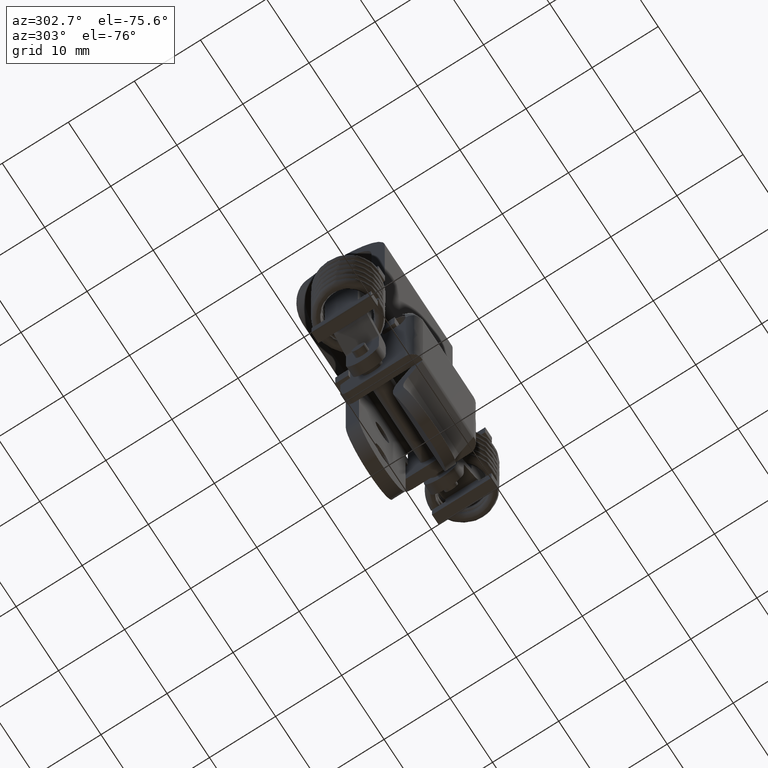
[diagram: clean part render]
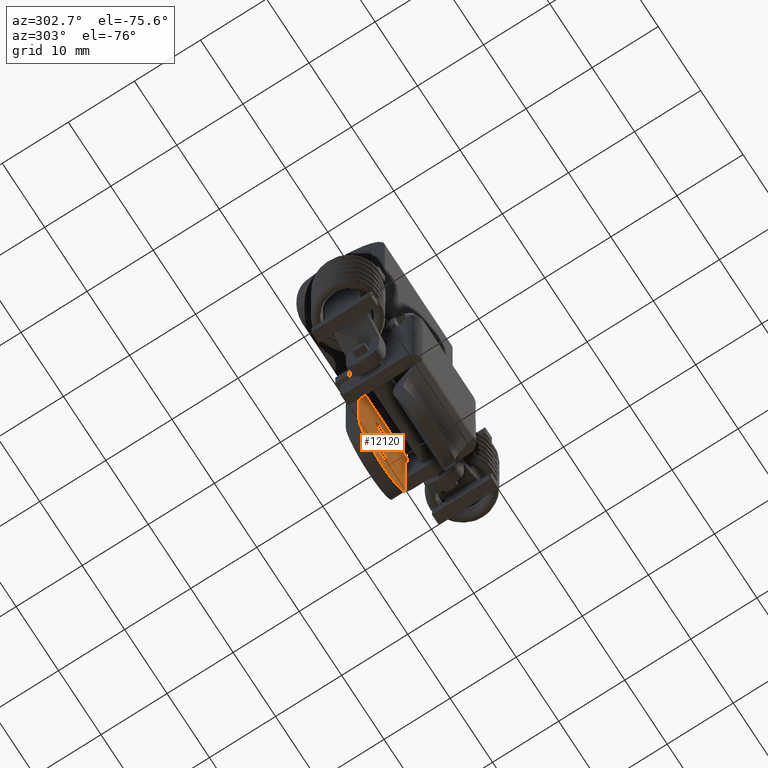
[diagram: same view with one face highlighted and labeled with its STEP entity id]
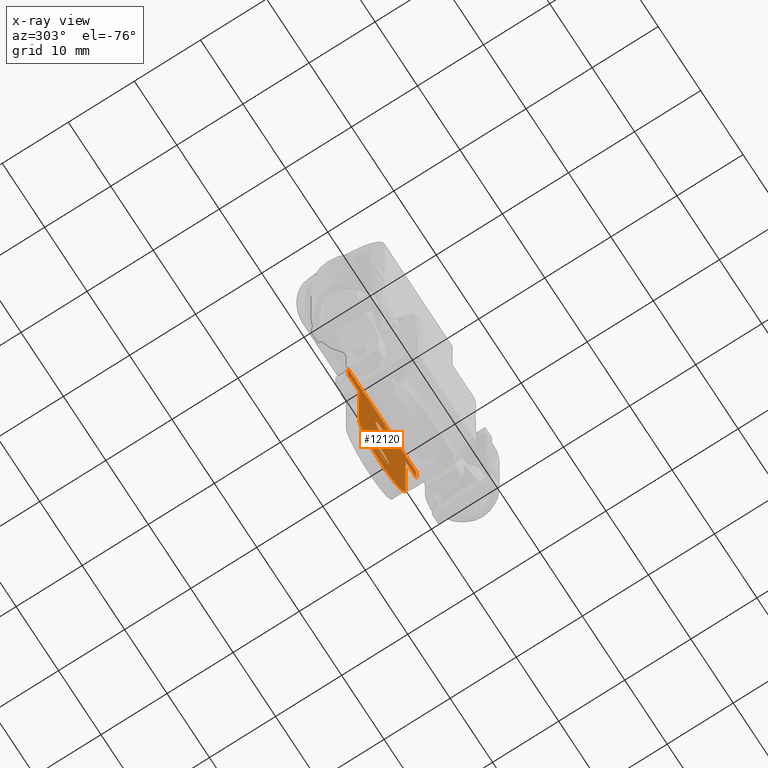
[diagram: x-ray of the same camera — body ghosted, the highlighted face saturated]
A machine part, auxiliary view. The second image highlights one B-rep face of the part: STEP entity #12120.
The next image is the same camera in x-ray: the body ghosted, the highlighted face saturated — about 0% of this face is hidden behind the body in this view.
In plain terms, the highlighted face is a freeform B-spline surface patch.
Its self-contained STEP definition (entity closure, byte-faithful):
#9487=CARTESIAN_POINT('',(0.0,1.0,-38.900015000000003));
#9488=VERTEX_POINT('',#9487);
#9489=CARTESIAN_POINT('',(-1.595067960080492,1.000000000000134,-40.374483319869640));
#9490=VERTEX_POINT('',#9489);
#9491=CARTESIAN_POINT('',(0.0,1.0,-38.900015000000003));
#9492=CARTESIAN_POINT('',(-1.479027458909125,1.000000000000067,-38.900015000000103));
#9493=CARTESIAN_POINT('',(-1.595067960080492,1.000000000000134,-40.374483319869640));
#9501=(BOUNDED_CURVE()B_SPLINE_CURVE(2,(#9491,#9492,#9493),.UNSPECIFIED.,.F.,.U.)B_SPLINE_CURVE_WITH_KNOTS((3,3),(0.0,0.236331609402423),.UNSPECIFIED.)CURVE()GEOMETRIC_REPRESENTATION_ITEM()RATIONAL_B_SPLINE_CURVE((1.0,0.723120296859042,0.969724000551427))REPRESENTATION_ITEM(''));
#9502=EDGE_CURVE('',#9488,#9490,#9501,.T.);
#9543=CARTESIAN_POINT('',(1.595067960080493,1.000000000000134,-40.625546680130363));
#9544=VERTEX_POINT('',#9543);
#9550=CARTESIAN_POINT('',(1.595067960080493,1.000000000000134,-40.625546680130363));
#9551=CARTESIAN_POINT('',(1.599999999997460,1.000000000000132,-40.562877728028802));
#9552=CARTESIAN_POINT('',(1.599999999997511,1.000000000000129,-40.500014999999799));
#9553=CARTESIAN_POINT('',(1.599999999998805,1.000000000000062,-38.900014999999918));
#9554=CARTESIAN_POINT('',(0.0,1.0,-38.900015000000003));
#9562=(BOUNDED_CURVE()B_SPLINE_CURVE(2,(#9550,#9551,#9552,#9553,#9554),.UNSPECIFIED.,.F.,.U.)B_SPLINE_CURVE_WITH_KNOTS((3,2,3),(0.736331609402423,0.750000000000000,1.0),.UNSPECIFIED.)CURVE()GEOMETRIC_REPRESENTATION_ITEM()RATIONAL_B_SPLINE_CURVE((0.969724000551425,0.983986484327504,1.0,0.707106781186548,1.0))REPRESENTATION_ITEM(''));
#9563=EDGE_CURVE('',#9544,#9488,#9562,.T.);
#9586=CARTESIAN_POINT('',(0.0,1.0,-42.100014999999999));
#9587=VERTEX_POINT('',#9586);
#9588=CARTESIAN_POINT('',(-1.595067960080492,1.000000000000134,-40.374483319869640));
#9589=CARTESIAN_POINT('',(-1.599999999997460,1.000000000000132,-40.437152271971193));
#9590=CARTESIAN_POINT('',(-1.599999999997510,1.000000000000129,-40.500015000000190));
#9591=CARTESIAN_POINT('',(-1.599999999998804,1.000000000000062,-42.100015000000084));
#9592=CARTESIAN_POINT('',(0.0,1.0,-42.100014999999999));
#9600=(BOUNDED_CURVE()B_SPLINE_CURVE(2,(#9588,#9589,#9590,#9591,#9592),.UNSPECIFIED.,.F.,.U.)B_SPLINE_CURVE_WITH_KNOTS((3,2,3),(0.236331609402423,0.250000000000000,0.500000000000000),.UNSPECIFIED.)CURVE()GEOMETRIC_REPRESENTATION_ITEM()RATIONAL_B_SPLINE_CURVE((0.969724000551426,0.983986484327505,1.0,0.707106781186548,1.0))REPRESENTATION_ITEM(''));
#9601=EDGE_CURVE('',#9490,#9587,#9600,.T.);
#9603=CARTESIAN_POINT('',(0.0,1.0,-42.100014999999999));
#9604=CARTESIAN_POINT('',(1.479027458909124,1.000000000000067,-42.100014999999900));
#9605=CARTESIAN_POINT('',(1.595067960080493,1.000000000000134,-40.625546680130363));
#9613=(BOUNDED_CURVE()B_SPLINE_CURVE(2,(#9603,#9604,#9605),.UNSPECIFIED.,.F.,.U.)B_SPLINE_CURVE_WITH_KNOTS((3,3),(0.500000000000000,0.736331609402423),.UNSPECIFIED.)CURVE()GEOMETRIC_REPRESENTATION_ITEM()RATIONAL_B_SPLINE_CURVE((1.0,0.723120296859043,0.969724000551426))REPRESENTATION_ITEM(''));
#9614=EDGE_CURVE('',#9587,#9544,#9613,.T.);
#9669=CARTESIAN_POINT('',(0.0,1.0,-27.900014999999900));
#9670=VERTEX_POINT('',#9669);
#9671=CARTESIAN_POINT('',(-1.595067960080493,1.000000000000134,-29.374483319869551));
#9672=VERTEX_POINT('',#9671);
#9673=CARTESIAN_POINT('',(0.0,1.0,-27.900014999999900));
#9674=CARTESIAN_POINT('',(-1.479027458909127,1.000000000000067,-27.900015000000000));
#9675=CARTESIAN_POINT('',(-1.595067960080492,1.000000000000134,-29.374483319869555));
#9683=(BOUNDED_CURVE()B_SPLINE_CURVE(2,(#9673,#9674,#9675),.UNSPECIFIED.,.F.,.U.)B_SPLINE_CURVE_WITH_KNOTS((3,3),(0.0,0.236331609402424),.UNSPECIFIED.)CURVE()GEOMETRIC_REPRESENTATION_ITEM()RATIONAL_B_SPLINE_CURVE((1.0,0.723120296859042,0.969724000551427))REPRESENTATION_ITEM(''));
#9684=EDGE_CURVE('',#9670,#9672,#9683,.T.);
#9725=CARTESIAN_POINT('',(1.595067960080493,1.000000000000134,-29.625546680130260));
#9726=VERTEX_POINT('',#9725);
#9732=CARTESIAN_POINT('',(1.595067960080493,1.000000000000134,-29.625546680130260));
#9733=CARTESIAN_POINT('',(1.599999999997460,1.000000000000132,-29.562877728028710));
#9734=CARTESIAN_POINT('',(1.599999999997511,1.000000000000129,-29.500014999999710));
#9735=CARTESIAN_POINT('',(1.599999999998805,1.000000000000062,-27.900014999999794));
#9736=CARTESIAN_POINT('',(0.0,1.0,-27.900014999999900));
#9744=(BOUNDED_CURVE()B_SPLINE_CURVE(2,(#9732,#9733,#9734,#9735,#9736),.UNSPECIFIED.,.F.,.U.)B_SPLINE_CURVE_WITH_KNOTS((3,2,3),(0.736331609402423,0.750000000000000,1.0),.UNSPECIFIED.)CURVE()GEOMETRIC_REPRESENTATION_ITEM()RATIONAL_B_SPLINE_CURVE((0.969724000551427,0.983986484327505,1.0,0.707106781186548,1.0))REPRESENTATION_ITEM(''));
#9745=EDGE_CURVE('',#9726,#9670,#9744,.T.);
#9768=CARTESIAN_POINT('',(0.0,1.0,-31.100014999999900));
#9769=VERTEX_POINT('',#9768);
#9770=CARTESIAN_POINT('',(-1.595067960080492,1.000000000000134,-29.374483319869551));
#9771=CARTESIAN_POINT('',(-1.599999999997460,1.000000000000132,-29.437152271971094));
#9772=CARTESIAN_POINT('',(-1.599999999997511,1.000000000000129,-29.500015000000101));
#9773=CARTESIAN_POINT('',(-1.599999999998805,1.000000000000062,-31.100014999999988));
#9774=CARTESIAN_POINT('',(0.0,1.0,-31.100014999999900));
#9782=(BOUNDED_CURVE()B_SPLINE_CURVE(2,(#9770,#9771,#9772,#9773,#9774),.UNSPECIFIED.,.F.,.U.)B_SPLINE_CURVE_WITH_KNOTS((3,2,3),(0.236331609402423,0.250000000000000,0.500000000000000),.UNSPECIFIED.)CURVE()GEOMETRIC_REPRESENTATION_ITEM()RATIONAL_B_SPLINE_CURVE((0.969724000551426,0.983986484327505,1.0,0.707106781186548,1.0))REPRESENTATION_ITEM(''));
#9783=EDGE_CURVE('',#9672,#9769,#9782,.T.);
#9785=CARTESIAN_POINT('',(0.0,1.0,-31.100014999999900));
#9786=CARTESIAN_POINT('',(1.479027458909127,1.000000000000067,-31.100014999999804));
#9787=CARTESIAN_POINT('',(1.595067960080493,1.000000000000134,-29.625546680130260));
#9795=(BOUNDED_CURVE()B_SPLINE_CURVE(2,(#9785,#9786,#9787),.UNSPECIFIED.,.F.,.U.)B_SPLINE_CURVE_WITH_KNOTS((3,3),(0.500000000000000,0.736331609402423),.UNSPECIFIED.)CURVE()GEOMETRIC_REPRESENTATION_ITEM()RATIONAL_B_SPLINE_CURVE((1.0,0.723120296859042,0.969724000551427))REPRESENTATION_ITEM(''));
#9796=EDGE_CURVE('',#9769,#9726,#9795,.T.);
#11510=CARTESIAN_POINT('',(5.500000000000000,1.0,-23.500000000000000));
#11511=VERTEX_POINT('',#11510);
#11512=CARTESIAN_POINT('',(8.0,1.0,-23.500000000000000));
#11513=VERTEX_POINT('',#11512);
#11514=CARTESIAN_POINT('',(5.500000000000000,1.0,-23.500000000000000));
#11515=CARTESIAN_POINT('',(8.0,1.0,-23.500000000000000));
#11516=QUASI_UNIFORM_CURVE('',1,(#11514,#11515),.UNSPECIFIED.,.F.,.U.);
#11517=EDGE_CURVE('',#11511,#11513,#11516,.T.);
#11546=CARTESIAN_POINT('',(-8.0,1.0,-23.500000000000000));
#11547=VERTEX_POINT('',#11546);
#11548=CARTESIAN_POINT('',(-5.500000000000000,1.0,-23.500000000000000));
#11549=VERTEX_POINT('',#11548);
#11550=CARTESIAN_POINT('',(-8.0,1.0,-23.500000000000000));
#11551=CARTESIAN_POINT('',(-5.500000000000000,1.0,-23.500000000000000));
#11552=QUASI_UNIFORM_CURVE('',1,(#11550,#11551),.UNSPECIFIED.,.F.,.U.);
#11553=EDGE_CURVE('',#11547,#11549,#11552,.T.);
#11582=CARTESIAN_POINT('',(-8.0,1.0,-26.500000000000000));
#11583=VERTEX_POINT('',#11582);
#11584=CARTESIAN_POINT('',(-8.0,1.0,-26.500000000000000));
#11585=CARTESIAN_POINT('',(-8.0,1.0,-23.500000000000000));
#11586=QUASI_UNIFORM_CURVE('',1,(#11584,#11585),.UNSPECIFIED.,.F.,.U.);
#11587=EDGE_CURVE('',#11583,#11547,#11586,.T.);
#11610=CARTESIAN_POINT('',(-5.500000000000000,1.0,-26.500000000000000));
#11611=VERTEX_POINT('',#11610);
#11612=CARTESIAN_POINT('',(-5.500000000000000,1.0,-26.500000000000000));
#11613=CARTESIAN_POINT('',(-8.0,1.0,-26.500000000000000));
#11614=QUASI_UNIFORM_CURVE('',1,(#11612,#11613),.UNSPECIFIED.,.F.,.U.);
#11615=EDGE_CURVE('',#11611,#11583,#11614,.T.);
#11638=CARTESIAN_POINT('',(-5.499999999999930,1.0,-41.000015863937847));
#11639=VERTEX_POINT('',#11638);
#11640=CARTESIAN_POINT('',(-5.499999999999930,1.0,-41.000015863937847));
#11641=CARTESIAN_POINT('',(-5.500000000000000,1.0,-26.500000000000000));
#11642=QUASI_UNIFORM_CURVE('',1,(#11640,#11641),.UNSPECIFIED.,.F.,.U.);
#11643=EDGE_CURVE('',#11639,#11611,#11642,.T.);
#11692=CARTESIAN_POINT('',(5.500000000000000,1.0,-41.000014999999898));
#11693=VERTEX_POINT('',#11692);
#11699=CARTESIAN_POINT('',(0.012845223817862,1.0,-46.500000000000000));
#11700=VERTEX_POINT('',#11699);
#11701=CARTESIAN_POINT('',(0.012845223817860,1.0,-46.499999999999901));
#11702=CARTESIAN_POINT('',(5.500000000000001,1.0,-46.487184741190418));
#11703=CARTESIAN_POINT('',(5.500000000000000,1.0,-41.000014999999898));
#11711=(BOUNDED_CURVE()B_SPLINE_CURVE(2,(#11701,#11702,#11703),.UNSPECIFIED.,.F.,.U.)CURVE()GEOMETRIC_REPRESENTATION_ITEM()QUASI_UNIFORM_CURVE()RATIONAL_B_SPLINE_CURVE((1.0,0.707932021891795,1.0))REPRESENTATION_ITEM(''));
#11712=EDGE_CURVE('',#11700,#11693,#11711,.T.);
#11736=CARTESIAN_POINT('',(-0.012845223817862,1.0,-46.500000000000000));
#11737=VERTEX_POINT('',#11736);
#11738=CARTESIAN_POINT('',(-5.499999999999932,1.0,-41.000015863937847));
#11739=CARTESIAN_POINT('',(-5.499999138077490,1.0,-46.487184743203443));
#11740=CARTESIAN_POINT('',(-0.012845223817862,1.0,-46.499999999999901));
#11748=(BOUNDED_CURVE()B_SPLINE_CURVE(2,(#11738,#11739,#11740),.UNSPECIFIED.,.F.,.U.)CURVE()GEOMETRIC_REPRESENTATION_ITEM()QUASI_UNIFORM_CURVE()RATIONAL_B_SPLINE_CURVE((1.0,0.707932077362938,1.0))REPRESENTATION_ITEM(''));
#11749=EDGE_CURVE('',#11639,#11737,#11748,.T.);
#11780=CARTESIAN_POINT('',(5.500000000000000,1.0,-26.500000000000000));
#11781=VERTEX_POINT('',#11780);
#11782=CARTESIAN_POINT('',(5.500000000000000,1.0,-26.500000000000000));
#11783=CARTESIAN_POINT('',(5.500000000000000,1.0,-41.000014999999898));
#11784=QUASI_UNIFORM_CURVE('',1,(#11782,#11783),.UNSPECIFIED.,.F.,.U.);
#11785=EDGE_CURVE('',#11781,#11693,#11784,.T.);
#11808=CARTESIAN_POINT('',(8.0,1.0,-26.500000000000000));
#11809=VERTEX_POINT('',#11808);
#11810=CARTESIAN_POINT('',(8.0,1.0,-26.500000000000000));
#11811=CARTESIAN_POINT('',(5.500000000000000,1.0,-26.500000000000000));
#11812=QUASI_UNIFORM_CURVE('',1,(#11810,#11811),.UNSPECIFIED.,.F.,.U.);
#11813=EDGE_CURVE('',#11809,#11781,#11812,.T.);
#11836=CARTESIAN_POINT('',(8.0,1.0,-23.500000000000000));
#11837=CARTESIAN_POINT('',(8.0,1.0,-26.500000000000000));
#11838=QUASI_UNIFORM_CURVE('',1,(#11836,#11837),.UNSPECIFIED.,.F.,.U.);
#11839=EDGE_CURVE('',#11513,#11809,#11838,.T.);
#11862=CARTESIAN_POINT('',(-0.012845223817862,1.0,-46.500000000000000));
#11863=CARTESIAN_POINT('',(0.012845223817862,1.0,-46.500000000000000));
#11864=QUASI_UNIFORM_CURVE('',1,(#11862,#11863),.UNSPECIFIED.,.F.,.U.);
#11865=EDGE_CURVE('',#11737,#11700,#11864,.T.);
#12040=CARTESIAN_POINT('',(-5.500000000000000,0.999999999999970,-23.474004208577650));
#12041=VERTEX_POINT('',#12040);
#12055=CARTESIAN_POINT('',(5.500000000000000,0.999999999999970,-23.474004208577650));
#12056=VERTEX_POINT('',#12055);
#12057=CARTESIAN_POINT('',(-5.500000000000000,0.999999999999970,-23.474004208577650));
#12058=CARTESIAN_POINT('',(5.500000000000000,0.999999999999970,-23.474004208577650));
#12059=QUASI_UNIFORM_CURVE('',1,(#12057,#12058),.UNSPECIFIED.,.F.,.U.);
#12060=EDGE_CURVE('',#12041,#12056,#12059,.T.);
#12079=CARTESIAN_POINT('',(-8.799199968988896,0.999999999999972,-47.650148445152702));
#12080=CARTESIAN_POINT('',(-8.799199968988896,0.999999999999972,-22.323855145819611));
#12081=CARTESIAN_POINT('',(8.799200398142338,0.999999999999972,-47.650148445152702));
#12082=CARTESIAN_POINT('',(8.799200398142338,0.999999999999972,-22.323855145819611));
#12083=B_SPLINE_SURFACE_WITH_KNOTS('',1,1,((#12079,#12081),(#12080,#12082)),.UNSPECIFIED.,.F.,.F.,.U.,(2,2),(2,2),(0.0,25.326293299333081),(0.0,17.598400367131230),.UNSPECIFIED.);
#12084=ORIENTED_EDGE('',*,*,#11643,.F.);
#12085=ORIENTED_EDGE('',*,*,#11749,.T.);
#12086=ORIENTED_EDGE('',*,*,#11865,.T.);
#12087=ORIENTED_EDGE('',*,*,#11712,.T.);
#12088=ORIENTED_EDGE('',*,*,#11785,.F.);
#12089=ORIENTED_EDGE('',*,*,#11813,.F.);
#12090=ORIENTED_EDGE('',*,*,#11839,.F.);
#12091=ORIENTED_EDGE('',*,*,#11517,.F.);
#12092=CARTESIAN_POINT('',(5.500000000000000,0.999999999999970,-23.474004208577650));
#12093=CARTESIAN_POINT('',(5.500000000000000,1.0,-23.500000000000000));
#12094=QUASI_UNIFORM_CURVE('',1,(#12092,#12093),.UNSPECIFIED.,.F.,.U.);
#12095=EDGE_CURVE('',#12056,#11511,#12094,.T.);
#12096=ORIENTED_EDGE('',*,*,#12095,.F.);
#12097=ORIENTED_EDGE('',*,*,#12060,.F.);
#12098=CARTESIAN_POINT('',(-5.500000000000000,1.0,-23.500000000000000));
#12099=CARTESIAN_POINT('',(-5.500000000000000,0.999999999999970,-23.474004208577650));
#12100=QUASI_UNIFORM_CURVE('',1,(#12098,#12099),.UNSPECIFIED.,.F.,.U.);
#12101=EDGE_CURVE('',#11549,#12041,#12100,.T.);
#12102=ORIENTED_EDGE('',*,*,#12101,.F.);
#12103=ORIENTED_EDGE('',*,*,#11553,.F.);
#12104=ORIENTED_EDGE('',*,*,#11587,.F.);
#12105=ORIENTED_EDGE('',*,*,#11615,.F.);
#12106=EDGE_LOOP('',(#12084,#12085,#12086,#12087,#12088,#12089,#12090,#12091,#12096,#12097,#12102,#12103,#12104,#12105));
#12107=FACE_OUTER_BOUND('',#12106,.T.);
#12108=ORIENTED_EDGE('',*,*,#9796,.F.);
#12109=ORIENTED_EDGE('',*,*,#9783,.F.);
#12110=ORIENTED_EDGE('',*,*,#9684,.F.);
#12111=ORIENTED_EDGE('',*,*,#9745,.F.);
#12112=EDGE_LOOP('',(#12108,#12109,#12110,#12111));
#12113=FACE_BOUND('',#12112,.T.);
#12114=ORIENTED_EDGE('',*,*,#9614,.F.);
#12115=ORIENTED_EDGE('',*,*,#9601,.F.);
#12116=ORIENTED_EDGE('',*,*,#9502,.F.);
#12117=ORIENTED_EDGE('',*,*,#9563,.F.);
#12118=EDGE_LOOP('',(#12114,#12115,#12116,#12117));
#12119=FACE_BOUND('',#12118,.T.);
#12120=ADVANCED_FACE('',(#12107,#12113,#12119),#12083,.F.);